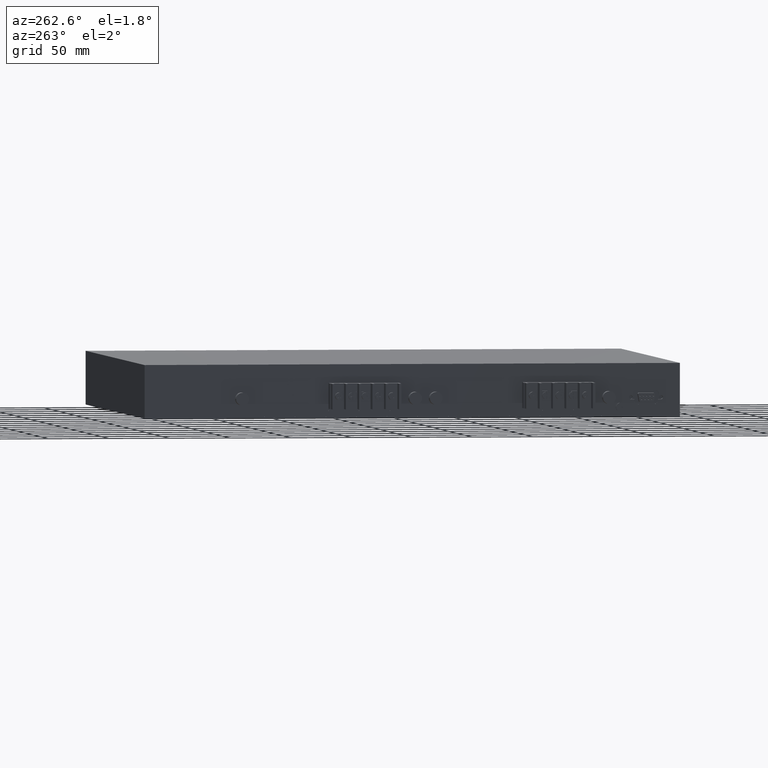
[diagram: clean part render]
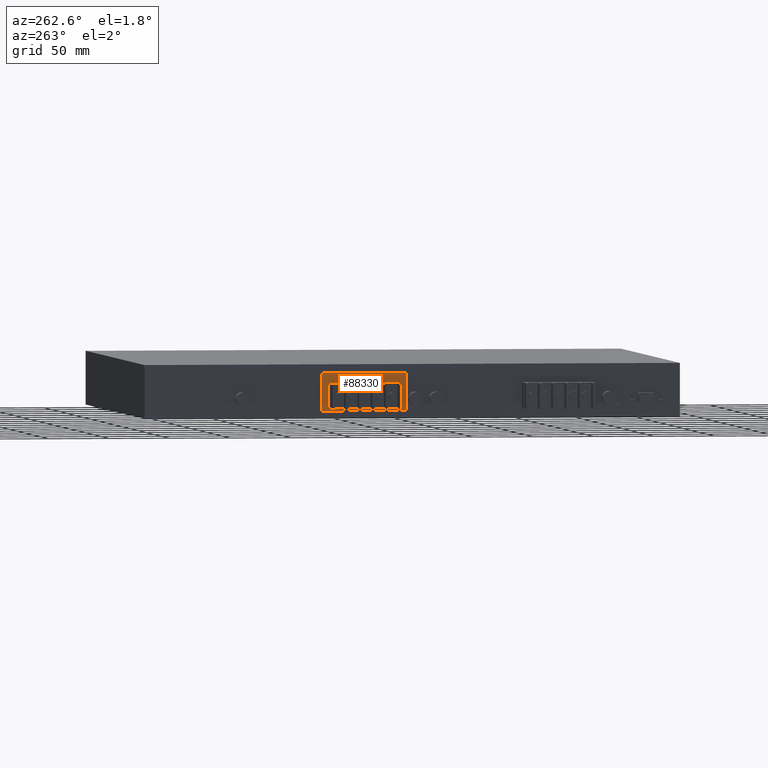
[diagram: same view with one face highlighted and labeled with its STEP entity id]
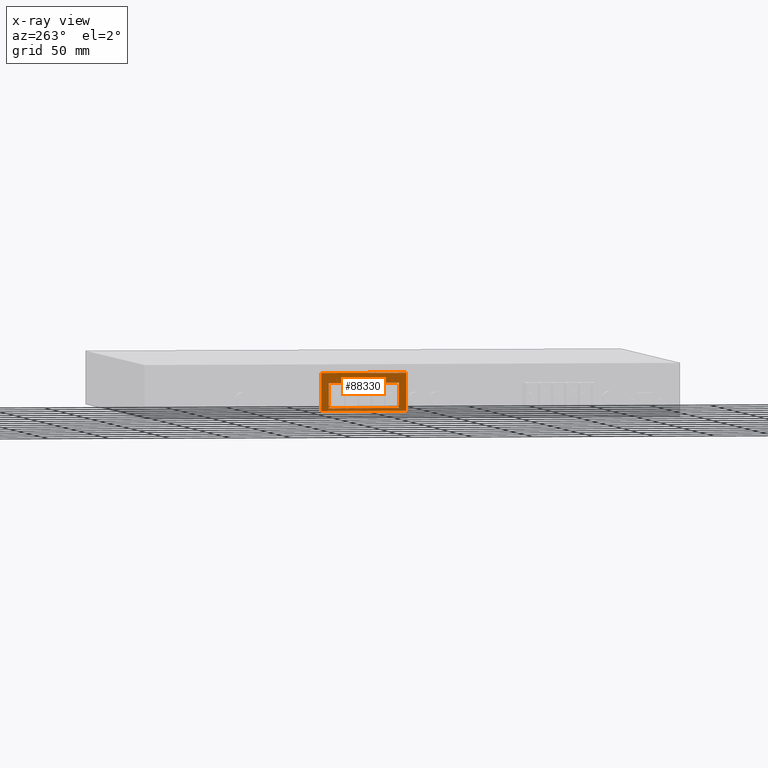
[diagram: x-ray of the same camera — body ghosted, the highlighted face saturated]
A machine part, auxiliary view. The second image highlights one B-rep face of the part: STEP entity #88330.
The next image is the same camera in x-ray: the body ghosted, the highlighted face saturated — about 0% of this face is hidden behind the body in this view.
In plain terms, the highlighted planar face has unit normal (-1, 0, 0).
Its self-contained STEP definition (entity closure, byte-faithful):
#67530=CARTESIAN_POINT('',(69.4060130425647,-10.9963677763395,
0.199999999980264));
#67540=VERTEX_POINT('',#67530);
#67710=CARTESIAN_POINT('',(69.4060130425647,-31.9963677763395,
0.199999999980264));
#67720=VERTEX_POINT('',#67710);
#67750=CARTESIAN_POINT('',(69.4060130425647,0.,0.199999999980264));
#67760=DIRECTION('',(0.,1.,0.));
#67770=VECTOR('',#67760,1.);
#67780=LINE('',#67750,#67770);
#67790=EDGE_CURVE('',#67720,#67540,#67780,.T.);
#87690=CARTESIAN_POINT('',(77.156079192565,-34.5714339263396,
0.199999999980264));
#87700=DIRECTION('',(0.,0.,-1.));
#87710=DIRECTION('',(-1.,0.,0.));
#87720=AXIS2_PLACEMENT_3D('',#87690,#87700,#87710);
#87730=PLANE('',#87720);
#87740=CARTESIAN_POINT('',(75.406013042565,0.,0.199999999980264));
#87750=DIRECTION('',(0.,-1.,0.));
#87760=VECTOR('',#87750,1.);
#87770=LINE('',#87740,#87760);
#87780=CARTESIAN_POINT('',(75.406013042565,-2.79636777633966,
0.199999999980264));
#87790=VERTEX_POINT('',#87780);
#87800=CARTESIAN_POINT('',(75.406013042565,-33.7963677763396,
0.199999999980264));
#87810=VERTEX_POINT('',#87800);
#87820=EDGE_CURVE('',#87790,#87810,#87770,.T.);
#87830=ORIENTED_EDGE('',*,*,#87820,.T.);
#87840=CARTESIAN_POINT('',(0.,-2.79636777633966,0.199999999980264));
#87850=DIRECTION('',(1.,0.,0.));
#87860=VECTOR('',#87850,1.);
#87870=LINE('',#87840,#87860);
#87880=CARTESIAN_POINT('',(5.40601304256532,-2.79636777633966,
0.199999999980264));
#87890=VERTEX_POINT('',#87880);
#87900=EDGE_CURVE('',#87890,#87790,#87870,.T.);
#87910=ORIENTED_EDGE('',*,*,#87900,.T.);
#87920=CARTESIAN_POINT('',(5.40601304256532,0.,0.199999999980264));
#87930=DIRECTION('',(0.,1.,0.));
#87940=VECTOR('',#87930,1.);
#87950=LINE('',#87920,#87940);
#87960=CARTESIAN_POINT('',(5.40601304256532,-33.7963677763396,
0.199999999980264));
#87970=VERTEX_POINT('',#87960);
#87980=EDGE_CURVE('',#87970,#87890,#87950,.T.);
#87990=ORIENTED_EDGE('',*,*,#87980,.T.);
#88000=CARTESIAN_POINT('',(0.,-33.7963677763396,0.199999999980264));
#88010=DIRECTION('',(-1.,0.,0.));
#88020=VECTOR('',#88010,1.);
#88030=LINE('',#88000,#88020);
#88040=EDGE_CURVE('',#87810,#87970,#88030,.T.);
#88050=ORIENTED_EDGE('',*,*,#88040,.T.);
#88060=EDGE_LOOP('',(#88050,#87990,#87910,#87830));
#88070=FACE_OUTER_BOUND('',#88060,.T.);
#88080=ORIENTED_EDGE('',*,*,#67790,.T.);
#88090=CARTESIAN_POINT('',(0.,-31.9963677763395,0.199999999980264));
#88100=DIRECTION('',(-1.,0.,0.));
#88110=VECTOR('',#88100,1.);
#88120=LINE('',#88090,#88110);
#88130=CARTESIAN_POINT('',(11.4060130425647,-31.9963677763395,
0.199999999980264));
#88140=VERTEX_POINT('',#88130);
#88150=EDGE_CURVE('',#67720,#88140,#88120,.T.);
#88160=ORIENTED_EDGE('',*,*,#88150,.F.);
#88170=CARTESIAN_POINT('',(11.4060130425647,0.,0.199999999980264));
#88180=DIRECTION('',(0.,-1.,0.));
#88190=VECTOR('',#88180,1.);
#88200=LINE('',#88170,#88190);
#88210=CARTESIAN_POINT('',(11.4060130425647,-10.9963677763395,
0.199999999980264));
#88220=VERTEX_POINT('',#88210);
#88230=EDGE_CURVE('',#88220,#88140,#88200,.T.);
#88240=ORIENTED_EDGE('',*,*,#88230,.T.);
#88250=CARTESIAN_POINT('',(0.,-10.9963677763395,0.199999999980264));
#88260=DIRECTION('',(-1.,0.,0.));
#88270=VECTOR('',#88260,1.);
#88280=LINE('',#88250,#88270);
#88290=EDGE_CURVE('',#67540,#88220,#88280,.T.);
#88300=ORIENTED_EDGE('',*,*,#88290,.T.);
#88310=EDGE_LOOP('',(#88300,#88240,#88160,#88080));
#88320=FACE_BOUND('',#88310,.T.);
#88330=ADVANCED_FACE('',(#88070,#88320),#87730,.T.);